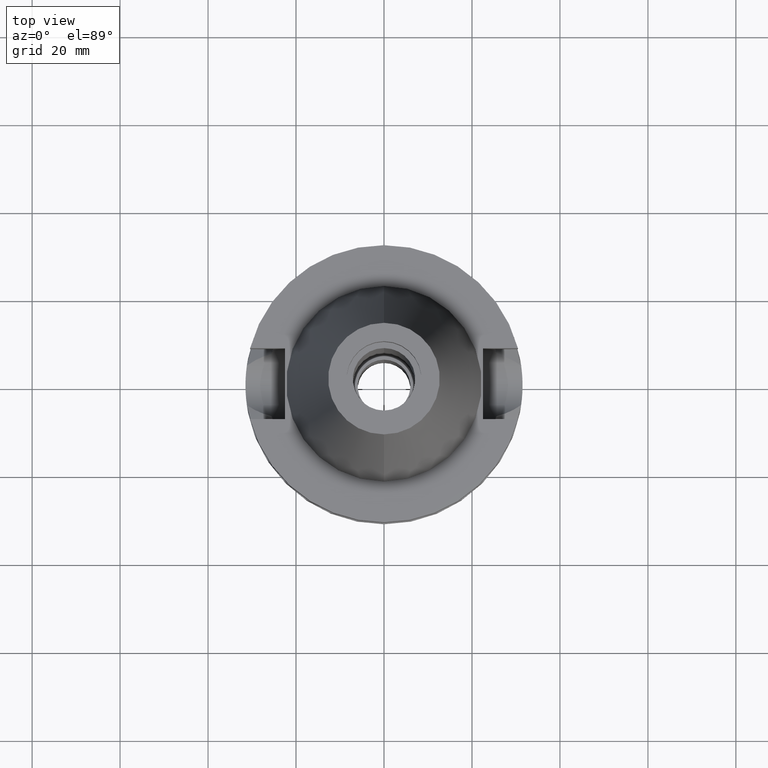
[diagram: clean part render]
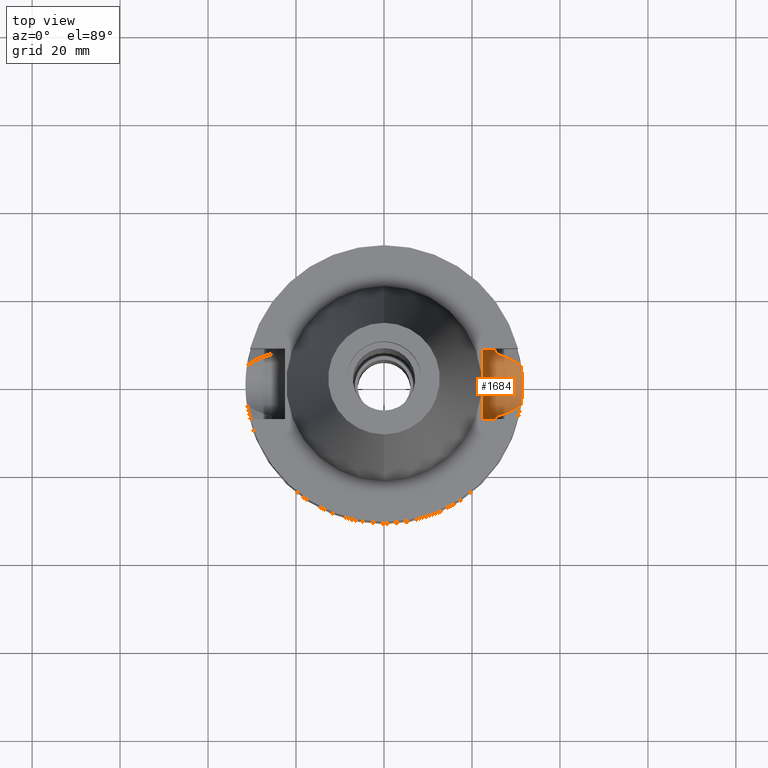
[diagram: same view with one face highlighted and labeled with its STEP entity id]
A machine part, top view. The second image highlights one B-rep face of the part: STEP entity #1684.
In plain terms, the highlighted cylindrical surface (edge-blend (fillet) strip) has radius 8.05 mm, axis along (1, 0, 0).
Its self-contained STEP definition (entity closure, byte-faithful):
#231=CARTESIAN_POINT('',(2.524772266958E1,-8.05E0,-1.495E1));
#232=CARTESIAN_POINT('',(2.524772266958E1,-8.05E0,-1.538836624581E1));
#233=CARTESIAN_POINT('',(2.527034454786E1,-7.979590381540E0,-1.625445348786E1));
#234=CARTESIAN_POINT('',(2.536984905223E1,-7.660468139847E0,-1.753893929126E1));
#235=CARTESIAN_POINT('',(2.547272591119E1,-7.310184643694E0,-1.835091906980E1));
#236=CARTESIAN_POINT('',(2.553175183775E1,-7.097862220093E0,-1.874774300139E1));
#314=CARTESIAN_POINT('',(2.25E1,0.E0,-1.495E1));
#315=DIRECTION('',(-1.E0,0.E0,0.E0));
#316=DIRECTION('',(0.E0,1.E0,0.E0));
#317=AXIS2_PLACEMENT_3D('',#314,#315,#316);
#322=CARTESIAN_POINT('',(2.25E1,0.E0,-1.495E1));
#323=DIRECTION('',(-1.E0,0.E0,0.E0));
#324=DIRECTION('',(0.E0,0.E0,-1.E0));
#325=AXIS2_PLACEMENT_3D('',#322,#323,#324);
#371=CARTESIAN_POINT('',(2.553175183775E1,7.097862220093E0,-1.874774300139E1));
#372=CARTESIAN_POINT('',(2.547271859263E1,7.310210969322E0,-1.835086986803E1));
#373=CARTESIAN_POINT('',(2.536983504485E1,7.660514361434E0,-1.753881631251E1));
#374=CARTESIAN_POINT('',(2.527033693534E1,7.979614138127E0,-1.625429252706E1));
#375=CARTESIAN_POINT('',(2.524772266958E1,8.05E0,-1.538829690305E1));
#376=CARTESIAN_POINT('',(2.524772266958E1,8.05E0,-1.495E1));
#513=CARTESIAN_POINT('',(3.117899877609E1,-4.485536235554E0,-2.163449434733E1));
#514=CARTESIAN_POINT('',(3.081783732790E1,-4.759538102382E0,-2.145062923527E1));
#515=CARTESIAN_POINT('',(3.002867758564E1,-5.292028394046E0,-2.104868794831E1));
#516=CARTESIAN_POINT('',(2.847902616346E1,-6.081678583064E0,-2.025785889946E1));
#517=CARTESIAN_POINT('',(2.704942133305E1,-6.642162268643E0,-1.952656492111E1));
#518=CARTESIAN_POINT('',(2.603825431045E1,-6.958633369619E0,-1.900795734379E1));
#519=CARTESIAN_POINT('',(2.553175183775E1,-7.097862220093E0,-1.874774300139E1));
#524=DIRECTION('',(-1.E0,-1.551559937893E-14,0.E0));
#525=VECTOR('',#524,2.747722669580E0);
#526=CARTESIAN_POINT('',(2.524772266958E1,-8.05E0,-1.495E1));
#527=LINE('',#526,#525);
#531=DIRECTION('',(1.E0,-1.551559937893E-14,0.E0));
#532=VECTOR('',#531,2.747722669580E0);
#533=CARTESIAN_POINT('',(2.25E1,8.05E0,-1.495E1));
#534=LINE('',#533,#532);
#538=CARTESIAN_POINT('',(3.117899877609E1,-4.485536235554E0,-2.163449434733E1));
#539=CARTESIAN_POINT('',(3.124369080524E1,-4.035861415955E0,-2.193624233195E1));
#540=CARTESIAN_POINT('',(3.135874964355E1,-3.100296799942E0,-2.243556869762E1));
#541=CARTESIAN_POINT('',(3.147361214504E1,-1.571010238608E0,-2.289773023090E1));
#542=CARTESIAN_POINT('',(3.15E1,-5.301810614004E-1,-2.3E1));
#543=CARTESIAN_POINT('',(3.15E1,0.E0,-2.3E1));
#548=CARTESIAN_POINT('',(3.15E1,0.E0,-2.3E1));
#549=CARTESIAN_POINT('',(3.15E1,5.302874392808E-1,-2.3E1));
#550=CARTESIAN_POINT('',(3.147360169555E1,1.571257160898E0,-2.289768897754E1));
#551=CARTESIAN_POINT('',(3.135872258253E1,3.100551592242E0,-2.243545751767E1));
#552=CARTESIAN_POINT('',(3.124367674355E1,4.035959158866E0,-2.193617674294E1));
#553=CARTESIAN_POINT('',(3.117899877609E1,4.485536235554E0,-2.163449434733E1));
#581=CARTESIAN_POINT('',(3.117899877609E1,4.485536235554E0,-2.163449434733E1));
#582=CARTESIAN_POINT('',(3.081593527875E1,4.760981127439E0,-2.144966091353E1));
#583=CARTESIAN_POINT('',(3.002375893826E1,5.294920770372E0,-2.104617987611E1));
#584=CARTESIAN_POINT('',(2.847559446419E1,6.083127796492E0,-2.025610687060E1));
#585=CARTESIAN_POINT('',(2.704649779873E1,6.643168922724E0,-1.952505867735E1));
#586=CARTESIAN_POINT('',(2.603714510441E1,6.958938271351E0,-1.900738749204E1));
#587=CARTESIAN_POINT('',(2.553175183775E1,7.097862220093E0,-1.874774300139E1));
#1226=VERTEX_POINT('',#548);
#1227=VERTEX_POINT('',#553);
#1228=VERTEX_POINT('',#538);
#1233=VERTEX_POINT('',#519);
#1234=VERTEX_POINT('',#231);
#1235=CARTESIAN_POINT('',(2.25E1,-8.05E0,-1.495E1));
#1236=VERTEX_POINT('',#1235);
#1237=CARTESIAN_POINT('',(2.25E1,0.E0,-2.3E1));
#1238=VERTEX_POINT('',#1237);
#1239=CARTESIAN_POINT('',(2.25E1,8.05E0,-1.495E1));
#1240=VERTEX_POINT('',#1239);
#1241=CARTESIAN_POINT('',(2.524772266958E1,8.05E0,-1.495E1));
#1242=VERTEX_POINT('',#1241);
#1243=VERTEX_POINT('',#371);
#1664=CARTESIAN_POINT('',(2.25E1,0.E0,-1.495E1));
#1665=DIRECTION('',(1.E0,0.E0,0.E0));
#1666=DIRECTION('',(0.E0,0.E0,-1.E0));
#1667=AXIS2_PLACEMENT_3D('',#1664,#1665,#1666);
#1668=CYLINDRICAL_SURFACE('',#1667,8.05E0);
#1670=ORIENTED_EDGE('',*,*,#1669,.F.);
#1672=ORIENTED_EDGE('',*,*,#1671,.F.);
#1673=ORIENTED_EDGE('',*,*,#1655,.T.);
#1674=ORIENTED_EDGE('',*,*,#1464,.F.);
#1675=ORIENTED_EDGE('',*,*,#1518,.T.);
#1676=ORIENTED_EDGE('',*,*,#1533,.F.);
#1677=ORIENTED_EDGE('',*,*,#1531,.F.);
#1678=ORIENTED_EDGE('',*,*,#1546,.T.);
#1679=ORIENTED_EDGE('',*,*,#1570,.F.);
#1681=ORIENTED_EDGE('',*,*,#1680,.F.);
#1682=EDGE_LOOP('',(#1670,#1672,#1673,#1674,#1675,#1676,#1677,#1678,#1679,
#1681));
#1683=FACE_OUTER_BOUND('',#1682,.F.);
#237=B_SPLINE_CURVE_WITH_KNOTS('',3,(#231,#232,#233,#234,#235,#236),
.UNSPECIFIED.,.F.,.F.,(4,1,1,4),(0.E0,3.333333333333E-1,6.666666666667E-1,1.E0),
.UNSPECIFIED.);
#318=CIRCLE('',#317,8.05E0);
#326=CIRCLE('',#325,8.05E0);
#377=B_SPLINE_CURVE_WITH_KNOTS('',3,(#371,#372,#373,#374,#375,#376),
.UNSPECIFIED.,.F.,.F.,(4,1,1,4),(0.E0,3.333333333333E-1,6.666666666667E-1,1.E0),
.UNSPECIFIED.);
#520=B_SPLINE_CURVE_WITH_KNOTS('',3,(#513,#514,#515,#516,#517,#518,#519),
.UNSPECIFIED.,.F.,.F.,(4,1,1,1,4),(0.E0,2.5E-1,5.E-1,7.5E-1,1.E0),
.UNSPECIFIED.);
#544=B_SPLINE_CURVE_WITH_KNOTS('',3,(#538,#539,#540,#541,#542,#543),
.UNSPECIFIED.,.F.,.F.,(4,1,1,4),(0.E0,3.333333333333E-1,6.666666666667E-1,1.E0),
.UNSPECIFIED.);
#554=B_SPLINE_CURVE_WITH_KNOTS('',3,(#548,#549,#550,#551,#552,#553),
.UNSPECIFIED.,.F.,.F.,(4,1,1,4),(0.E0,3.333333333333E-1,6.666666666667E-1,1.E0),
.UNSPECIFIED.);
#588=B_SPLINE_CURVE_WITH_KNOTS('',3,(#581,#582,#583,#584,#585,#586,#587),
.UNSPECIFIED.,.F.,.F.,(4,1,1,1,4),(0.E0,2.5E-1,5.E-1,7.5E-1,1.E0),
.UNSPECIFIED.);
#1464=EDGE_CURVE('',#1234,#1233,#237,.T.);
#1518=EDGE_CURVE('',#1234,#1236,#527,.T.);
#1531=EDGE_CURVE('',#1240,#1238,#318,.T.);
#1533=EDGE_CURVE('',#1238,#1236,#326,.T.);
#1546=EDGE_CURVE('',#1240,#1242,#534,.T.);
#1570=EDGE_CURVE('',#1243,#1242,#377,.T.);
#1655=EDGE_CURVE('',#1228,#1233,#520,.T.);
#1669=EDGE_CURVE('',#1226,#1227,#554,.T.);
#1671=EDGE_CURVE('',#1228,#1226,#544,.T.);
#1680=EDGE_CURVE('',#1227,#1243,#588,.T.);
#1684=ADVANCED_FACE('',(#1683),#1668,.F.);